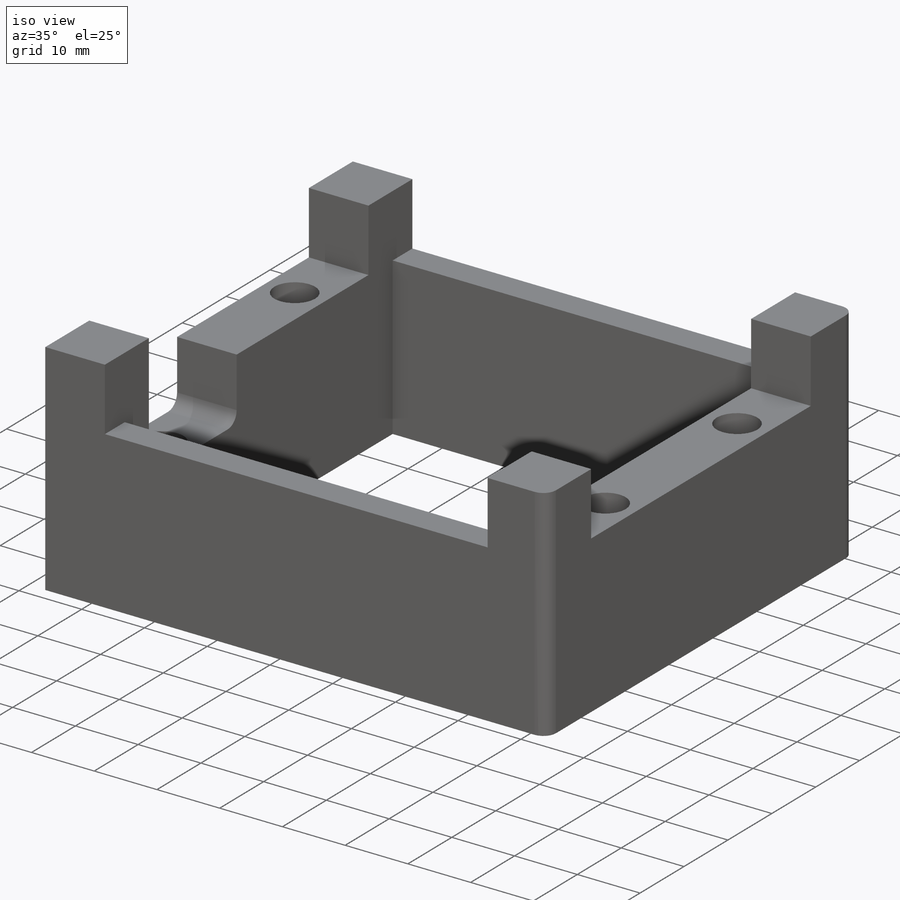
[diagram: iso view]
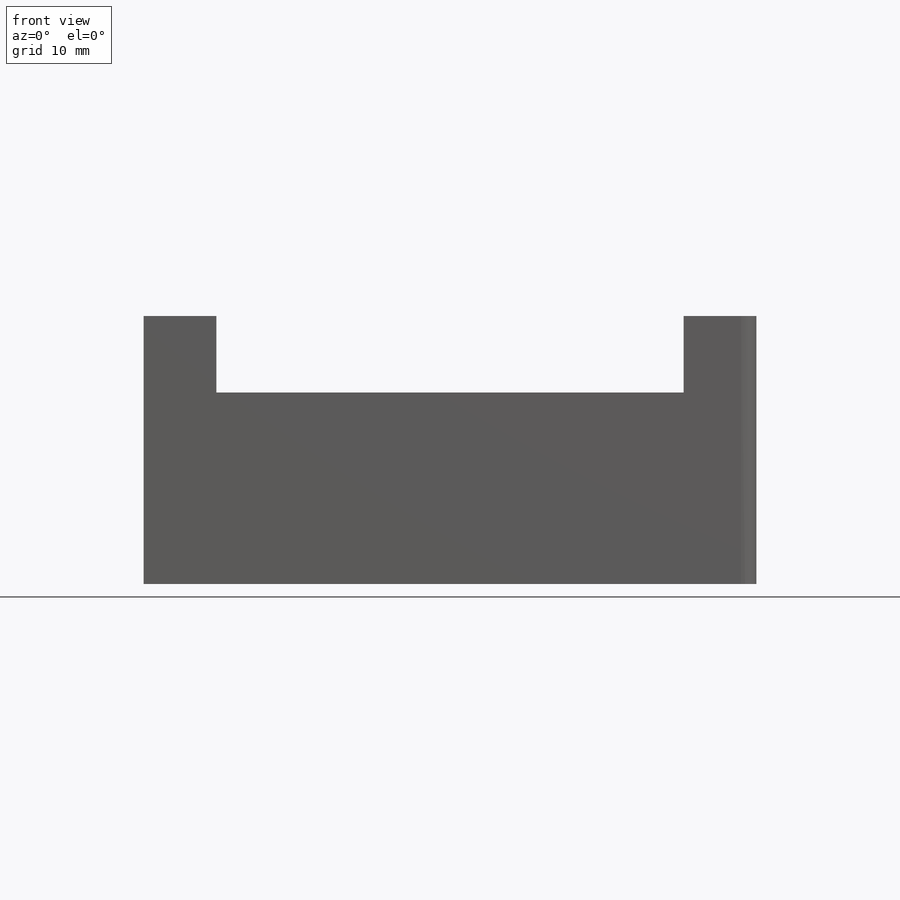
[diagram: front view]
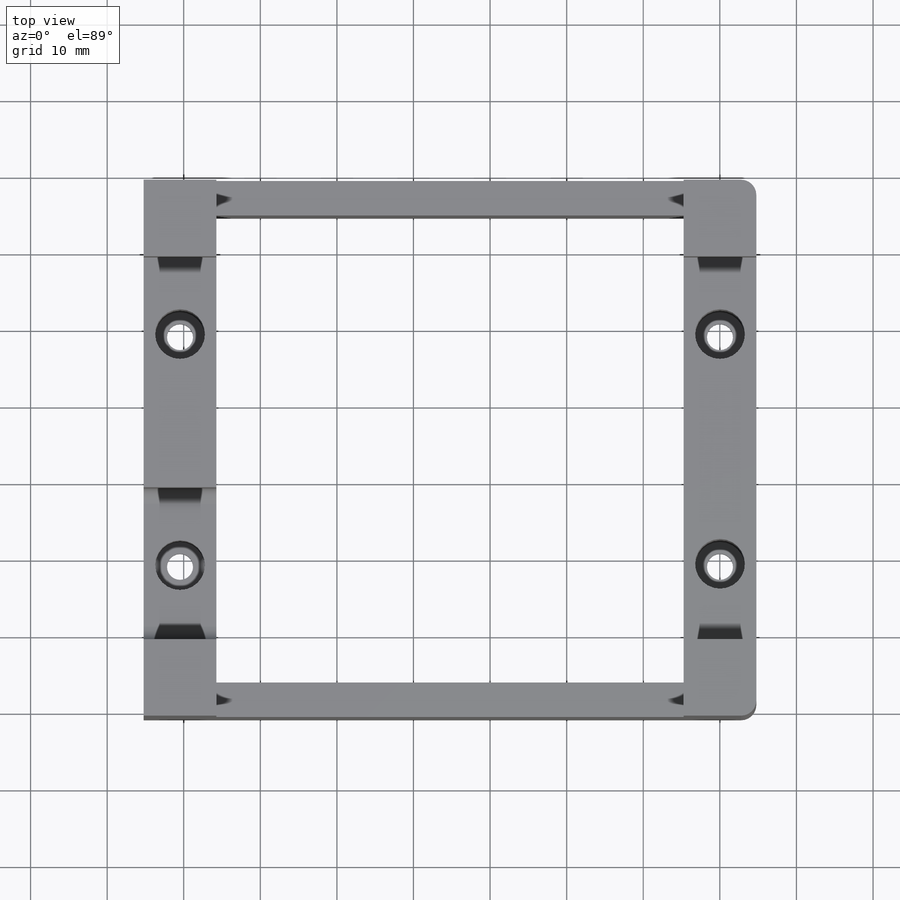
[diagram: top view]
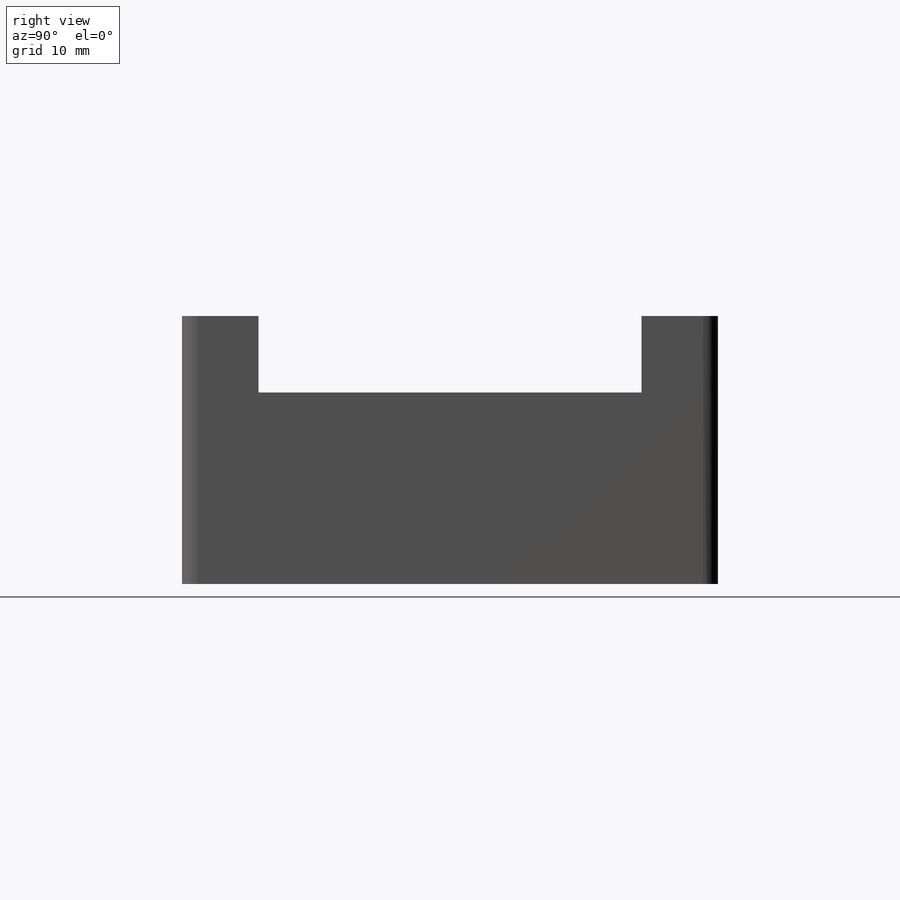
[diagram: right view]
SOLIDWORKS PART (.sldprt)
format: sldprt  version: not decoded by parser v0  size: 311,808 bytes
history: native  units: mm
features: sketch x10, fillet x3, extrude x2, cut_extrude x2, hole x2, material x1 (+11 scaffold rows collapsed)
feature tree (31):
  scaffold x11  (default folders/planes/origin — collapsed)
  material  "Material <not specified>"
  sketch  "Sketch1"  dims[D1=70.0mm D2=80.0mm]
  extrude  "Boss-Extrude1"  Depth=25mm
  sketch  "Sketch2"  dims[D1=9.5mm D2=9.5mm D3=4.5mm D4=4.5mm]
  cut_extrude  "Cut-Extrude1"  [1 undecoded]
  sketch  "Sketch3"  dims[D1=10.0mm D2=9.5mm D3=10.0mm]
  extrude  "Boss-Extrude2"  Depth=10mm
  fillet  "Fillet1"  Radius=2mm
  fillet  "Fillet4"  Radius=2mm
  sketch  "Sketch4"  dims[D1=4.75mm D2=20.0mm D3=20.0mm D4=2.0]
  hole  "CBORE for M3 SHCS1"  Diameter=3.4mm Depth=25.000025mm
  sketch  "3DSketch1"
  sketch  "Sketch6"  dims[hole-wizard template sketch: 42 standard entries collapsed; hole parameters kept: c12.Thru Hole Depth=~25.000025mm c12.C'Bore Dia.=6.5mm c12.C'Bore Depth=22.0mm]
  sketch  "Sketch7"  dims[D1=5.0mm D2=5.0mm D3=5.0mm D4=5.0mm]
  hole  "Tap Drill for M3x0.5 Tap1"  Diameter=2.5mm Depth=8mm
  sketch  "3DSketch2"
  sketch  "Sketch8"  dims[hole-wizard template sketch: 50 standard entries collapsed; hole parameters above]
  sketch  "Sketch9"  dims[D1=10.0mm D2=20.0mm]
  cut_extrude  "Cut-Extrude2"  [1 undecoded]
  fillet  "Fillet5"  Radius=2mm
decode coverage: 15 of 19 modeling features carry decoded parameters
note: ~ marks probable driven/reference dimensions
note: 2 parameter values undecoded
note: suppression state not decoded; provenance and decode notes live in map.json
